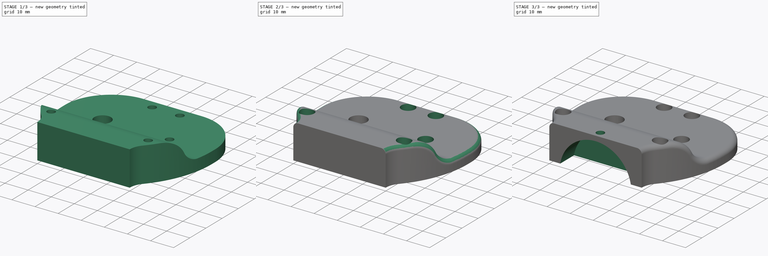
[diagram: build sequence overview — one tinted view per stage of 3, left to right]
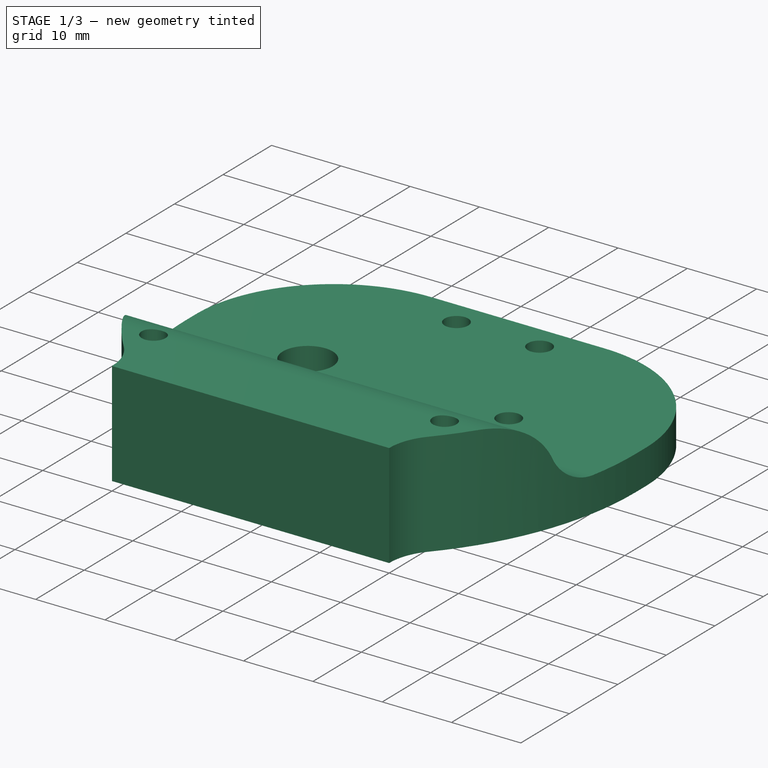
[diagram: stage 1 of 3 — iso view after this stage's code; geometry added in this stage tinted green]
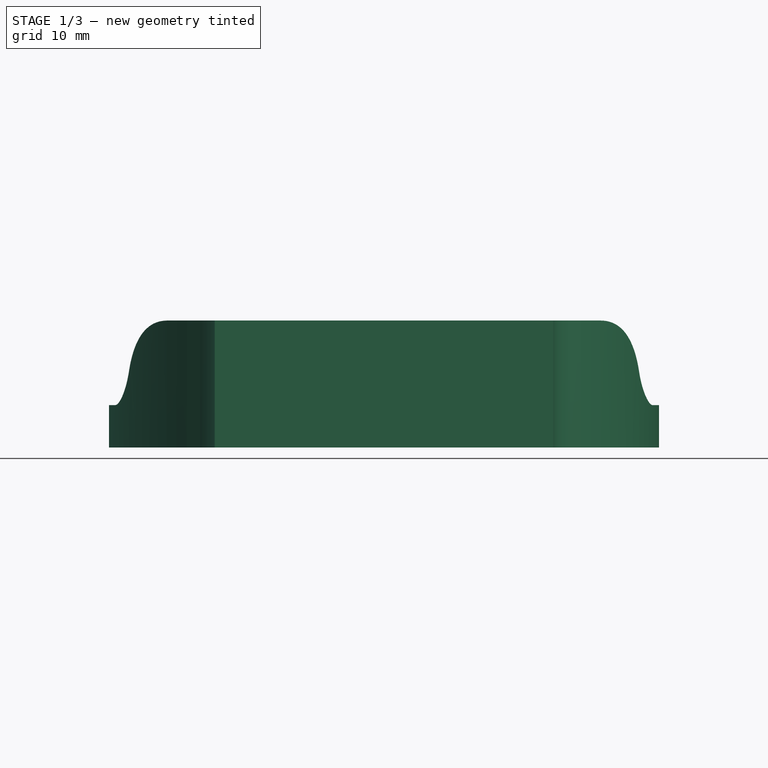
[diagram: stage 1 of 3 — front view after this stage's code; geometry added in this stage tinted green]
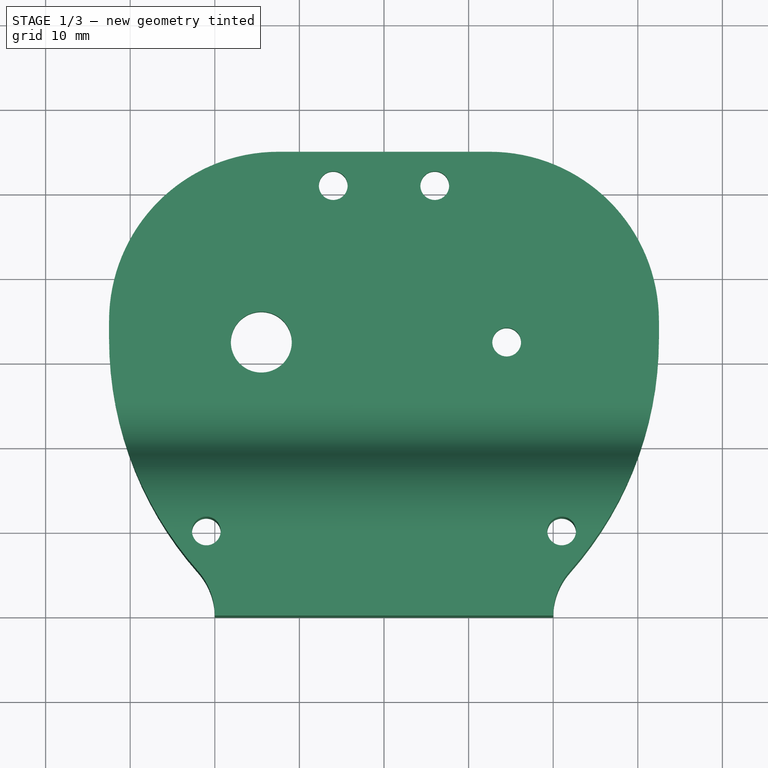
[diagram: stage 1 of 3 — top view after this stage's code; geometry added in this stage tinted green]
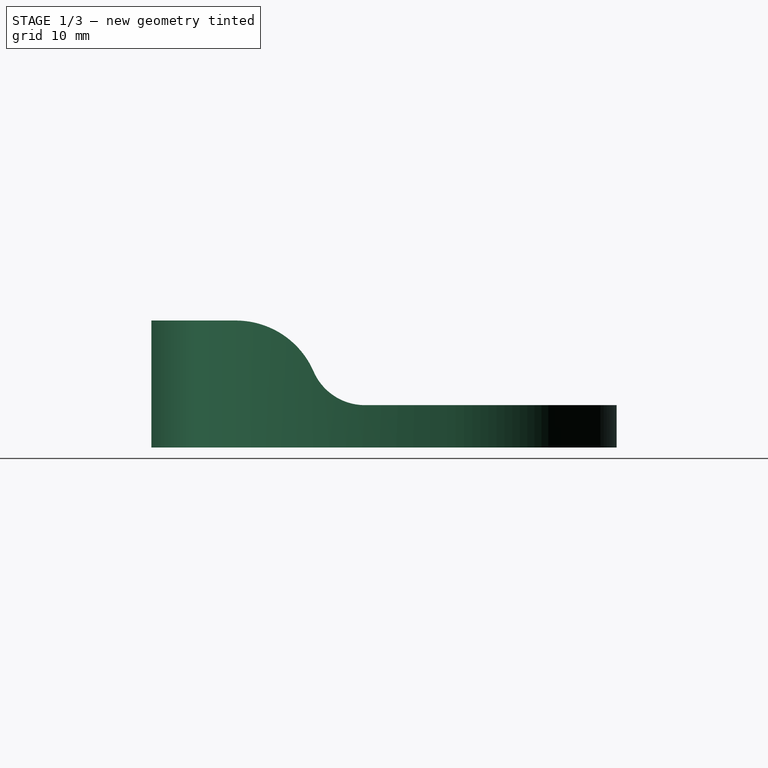
[diagram: stage 1 of 3 — right view after this stage's code; geometry added in this stage tinted green]
FCSTD DOCUMENT  (FreeCAD 0.19R24276 (Git))
Label: GripperTop
License: All rights reserved
LicenseURL: http://en.wikipedia.org/wiki/All_rights_reserved
objects: Sketcher::SketchObject×6, PartDesign::Line×6, PartDesign::Pocket×5, Spreadsheet::Sheet×1, PartDesign::Pad×1, PartDesign::Fillet×1, PartDesign::CoordinateSystem×1, PartDesign::Body×1
note: 28 computed .brp shape members not serialized (recipe doc carries the construction recipe); baked Part::Feature solids carry a one-line shape summary decoded from their .brp

FEATURE [Spreadsheet::Sheet] Spreadsheet
  cells = A2=M3BoltBodyRadius; B2(M3BoltBodyRadius)=1.7; A3=M3BoltHeadRadius; B3(M3BoltHeadRadius)=2.95; A4=M3NutCircumradius; B4(M3NutCircumradius)=3.35; A5=M3NutThickness; B5(M3NutThickness)=3; A6=Bearing655ZZBodyRadius; B6(Bearing655ZZBodyRadius)=8.199999999999999
FEATURE [Sketcher::SketchObject] Sketch
  FullyConstrained = true
  MapMode = 5
  Support = -> [XY_Plane]
  expr: Constraints[31] = Spreadsheet.M3BoltBodyRadius
  sketch-geometry (16):
    g0: LineSegment StartX=-20 StartY=0 StartZ=0 EndX=20 EndY=1e-15 EndZ=0
    g1: ArcOfCircle CenterX=27.9696 CenterY=0 CenterZ=0 NormalX=0 NormalY=0 NormalZ=1 AngleXU=0 Radius=7.9696 StartAngle=2.41742 EndAngle=3.14159
    g2: ArcOfCircle CenterX=-27.9696 CenterY=0 CenterZ=0 NormalX=0 NormalY=0 NormalZ=1 AngleXU=0 Radius=7.9696 StartAngle=0 EndAngle=0.724175
    g3: Circle CenterX=-6 CenterY=51 CenterZ=0 NormalX=0 NormalY=0 NormalZ=1 AngleXU=0 Radius=1.7
    g4: Circle CenterX=6 CenterY=51 CenterZ=0 NormalX=0 NormalY=0 NormalZ=1 AngleXU=0 Radius=1.7
    g5: LineSegment StartX=-12.5 StartY=55 StartZ=0 EndX=12.5 EndY=55 EndZ=0
    g6: ArcOfCircle CenterX=12.5 CenterY=35 CenterZ=0 NormalX=0 NormalY=0 NormalZ=1 AngleXU=0 Radius=20 StartAngle=0 EndAngle=1.5708
    g7: LineSegment StartX=32.5 StartY=35 StartZ=0 EndX=32.5 EndY=33 EndZ=0
    g8: ArcOfCircle CenterX=-9.3404 CenterY=33 CenterZ=0 NormalX=0 NormalY=0 NormalZ=1 AngleXU=0 Radius=41.8404 StartAngle=5.55901 EndAngle=6.28319
    g9: LineSegment StartX=-32.5 StartY=35 StartZ=0 EndX=-32.5 EndY=33 EndZ=0
    g10: ArcOfCircle CenterX=-12.5 CenterY=35 CenterZ=0 NormalX=0 NormalY=0 NormalZ=1 AngleXU=0 Radius=20 StartAngle=1.5708 EndAngle=3.14159
    g11: ArcOfCircle CenterX=9.3404 CenterY=33 CenterZ=0 NormalX=0 NormalY=0 NormalZ=1 AngleXU=0 Radius=41.8404 StartAngle=3.14159 EndAngle=3.86577
    g12: Circle CenterX=-21 CenterY=10 CenterZ=0 NormalX=0 NormalY=0 NormalZ=1 AngleXU=0 Radius=1.7
    g13: Circle CenterX=21 CenterY=10 CenterZ=0 NormalX=0 NormalY=0 NormalZ=1 AngleXU=0 Radius=1.7
    g14: Circle CenterX=-14.5 CenterY=32.5 CenterZ=0 NormalX=0 NormalY=0 NormalZ=1 AngleXU=0 Radius=3.6
    g15: Circle CenterX=14.5 CenterY=32.5 CenterZ=0 NormalX=0 NormalY=0 NormalZ=1 AngleXU=0 Radius=1.7
  constraints (42):
    c: PointOnObject(g0,g-1)
    c: Symmetric(g0,g0,g-2)
    c: PointOnObject(g1,g-1)
    c: Coincident(g1,g0)
    c: PointOnObject(g2,g-1)
    c: Coincident(g2,g0)
    c: Equal(g3,g4)
    c: Symmetric(g3,g4,g-2)
    c: DistanceX(g3,g4) = 12
    c: Horizontal(g5)
    c: DistanceY(g4,g5) = 4
    c: Radius(g6) = 20
    c: Tangent(g6,g5) = 1.5708
    c: DistanceX(g0,g0) = 40
    c: Vertical(g7)
    c: Tangent(g7,g6) = 1.5708
    c: Tangent(g8,g1) = 1.5708
    c: Tangent(g8,g7) = 1.5708
    c: DistanceY(g7,g7) = 2
    c: Vertical(g9)
    c: Equal(g9,g7)
    c: Equal(g10,g6)
    c: Coincident(g10,g5)
    c: Symmetric(g10,g6,g-2)
    c: Tangent(g10,g9) = -1.5708
    c: Tangent(g11,g2) = 1.5708
    c: Tangent(g11,g9) = -1.5708
    c: Equal(g2,g1)
    c: DistanceX(g2,g-1) = 22
    c: DistanceX(g9,g6) = 65
    c: DistanceY(g-1,g5) = 55
    c: Radius(g3) = 1.7
    c: Equal(g13,g12)
    c: Equal(g12,g3)
    c: Symmetric(g12,g13,g-2)
    c: DistanceY(g-1,g12) = 10
    c: DistanceX(g12,g-1) = 21
    c: Equal(g15,g13)
    c: Radius(g14) = 3.6
    c: Symmetric(g15,g14,g-2)
    c: DistanceX(g14,g-1) = 14.5
    c: DistanceY(g0,g14) = 32.5
FEATURE [PartDesign::Pad] Pad
  Direction = (1,1,1)
  Length = 15
  Length2 = 100
  Profile = -> Sketch
  Refine = true
  Type = 0
FEATURE [Sketcher::SketchObject] Sketch001
  FullyConstrained = true
  MapMode = 5
  Placement = pos=(32.5,0,0) rot=(0.57735,0.57735,0.57735;2.0944rad)
  Support = -> [Pad]
  sketch-geometry (7):
    g0: ArcOfCircle CenterX=10 CenterY=5 CenterZ=0 NormalX=0 NormalY=0 NormalZ=1 AngleXU=0 Radius=10 StartAngle=0.41 EndAngle=1.5708
    g1: ArcOfCircle CenterX=25.25 CenterY=11.6281 CenterZ=0 NormalX=0 NormalY=0 NormalZ=1 AngleXU=0 Radius=6.62812 StartAngle=3.55159 EndAngle=4.71239
    g2: LineSegment StartX=10 StartY=15 StartZ=0 EndX=0 EndY=15 EndZ=0
    g3: LineSegment StartX=0 StartY=15 StartZ=0 EndX=0 EndY=20 EndZ=0
    g4: LineSegment StartX=0 StartY=20 StartZ=0 EndX=60 EndY=20 EndZ=0
    g5: LineSegment StartX=60 StartY=20 StartZ=0 EndX=60 EndY=5 EndZ=0
    g6: LineSegment StartX=60 StartY=5 StartZ=0 EndX=25.25 EndY=5 EndZ=0
  constraints (20):
    c: Tangent(g0,g2) = -1.5708
    c: Coincident(g2,g3)
    c: PointOnObject(g3,g-2)
    c: Vertical(g3)
    c: Coincident(g3,g4)
    c: Horizontal(g4)
    c: Coincident(g4,g5)
    c: Vertical(g5)
    c: Coincident(g5,g6)
    c: Horizontal(g6)
    c: Horizontal(g2)
    c: Tangent(g1,g0) = 1.5708
    c: Tangent(g6,g1) = 1.5708
    c: DistanceX(g-1,g0) = 10
    c: Radius(g0) = 10
    c: DistanceX(g6,g6) = 34.75
    c: DistanceX(g4,g4) = 60
    c: DistanceY(g-1,g2) = 15
    c: DistanceY(g3,g3) = 5
    c: DistanceY(g-1,g1) = 5
FEATURE [PartDesign::Pocket] Pocket
  BaseFeature = -> Pad
  Length = 5
  Length2 = 100
  Profile = -> Sketch001
  Refine = true
  Type = 1
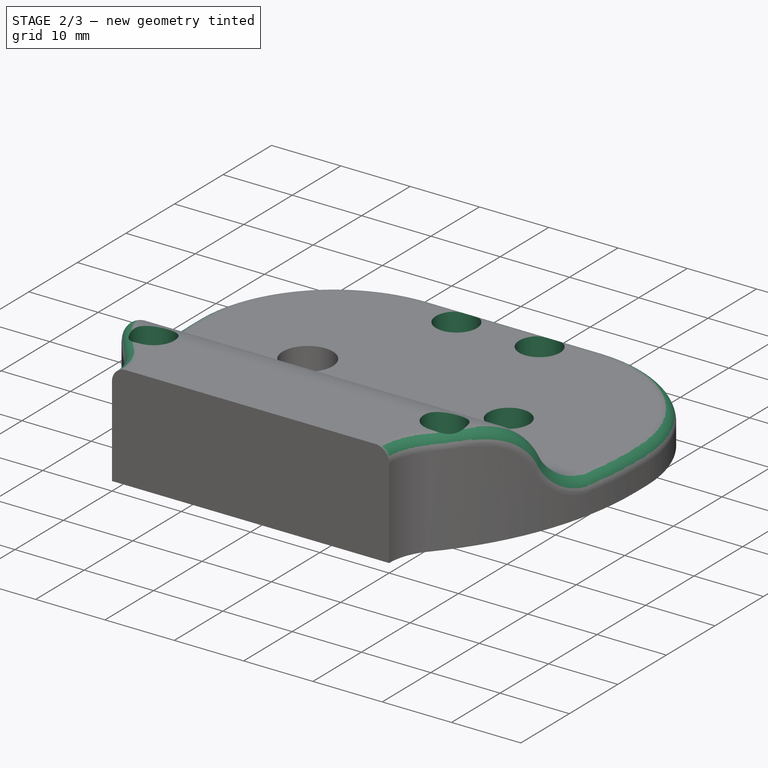
[diagram: stage 2 of 3 — iso view after this stage's code; geometry added in this stage tinted green]
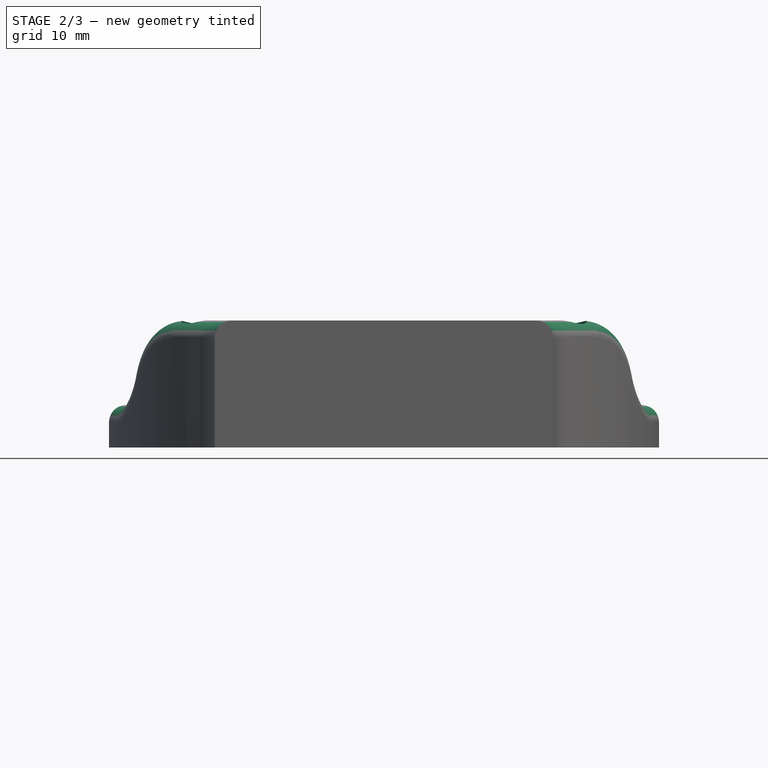
[diagram: stage 2 of 3 — front view after this stage's code; geometry added in this stage tinted green]
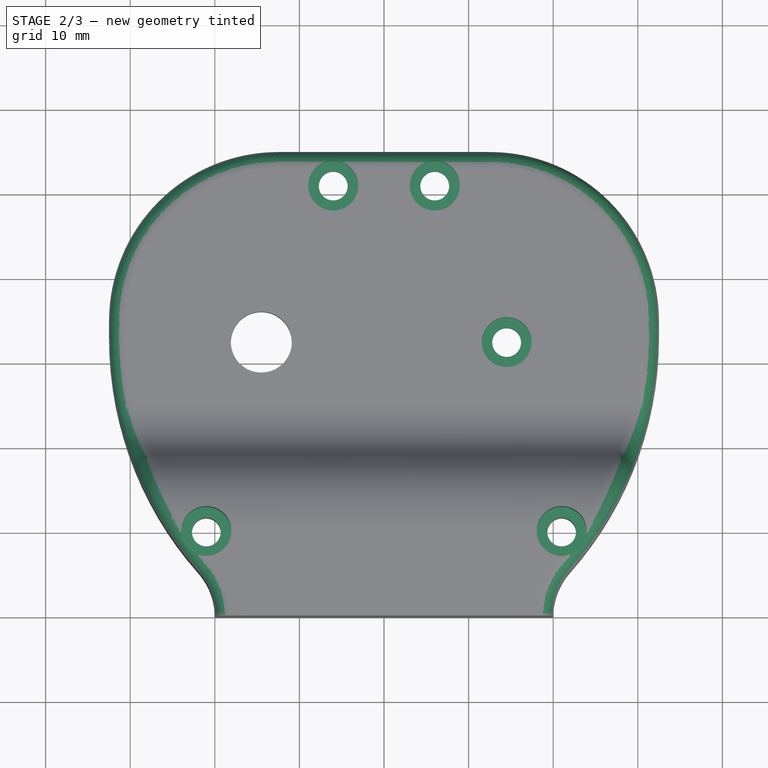
[diagram: stage 2 of 3 — top view after this stage's code; geometry added in this stage tinted green]
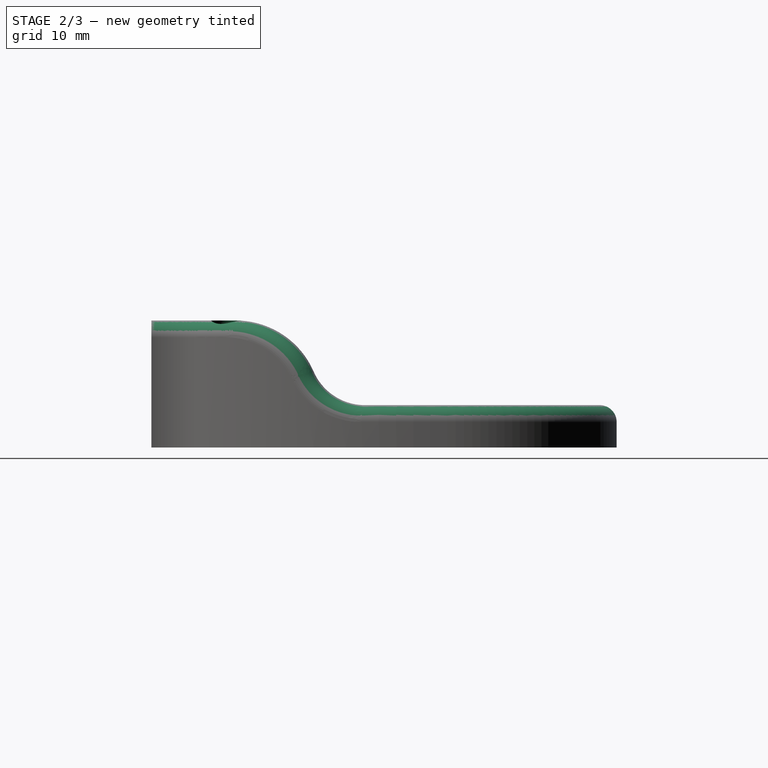
[diagram: stage 2 of 3 — right view after this stage's code; geometry added in this stage tinted green]
FEATURE [PartDesign::Fillet] Fillet
  Base = -> Pocket [Edge45]
  BaseFeature = -> Pocket
  Radius = 2
  Refine = true
  SupportTransform = false
FEATURE [Sketcher::SketchObject] Sketch002
  ExternalGeometry = -> [Fillet]
  FullyConstrained = true
  MapMode = 5
  Placement = pos=(0,0,5) rot=(0,0,1;0rad)
  Support = -> [Fillet]
  expr: Constraints[5] = Spreadsheet.M3BoltHeadRadius
  sketch-geometry (3):
    g0: Circle CenterX=-6 CenterY=51 CenterZ=0 NormalX=0 NormalY=0 NormalZ=1 AngleXU=0 Radius=2.95
    g1: Circle CenterX=6 CenterY=51 CenterZ=0 NormalX=0 NormalY=0 NormalZ=1 AngleXU=0 Radius=2.95
    g2: Circle CenterX=14.5 CenterY=32.5 CenterZ=0 NormalX=0 NormalY=0 NormalZ=1 AngleXU=0 Radius=2.95
  constraints (6):
    c: Coincident(g0,g-5)
    c: Coincident(g1,g-4)
    c: Coincident(g2,g-3)
    c: Equal(g2,g1)
    c: Equal(g1,g0)
    c: Radius(g0) = 2.95
FEATURE [PartDesign::Pocket] Pocket001
  BaseFeature = -> Fillet
  Length = 3
  Length2 = 100
  Profile = -> Sketch002
  Refine = true
  Type = 0
FEATURE [Sketcher::SketchObject] Sketch003
  ExternalGeometry = -> [Pocket001]
  FullyConstrained = true
  MapMode = 5
  Placement = pos=(0,0,15) rot=(0,0,1;0rad)
  Support = -> [Pocket001]
  expr: Constraints[3] = Spreadsheet.M3BoltHeadRadius
  sketch-geometry (2):
    g0: Circle CenterX=-21 CenterY=10 CenterZ=0 NormalX=0 NormalY=0 NormalZ=1 AngleXU=0 Radius=2.95
    g1: Circle CenterX=21 CenterY=10 CenterZ=0 NormalX=0 NormalY=0 NormalZ=1 AngleXU=0 Radius=2.95
  constraints (4):
    c: Coincident(g0,g-3)
    c: Coincident(g1,g-4)
    c: Equal(g1,g0)
    c: Radius(g0) = 2.95
FEATURE [PartDesign::Pocket] Pocket002
  BaseFeature = -> Pocket001
  Length = 7
  Length2 = 100
  Profile = -> Sketch003
  Refine = true
  Type = 0
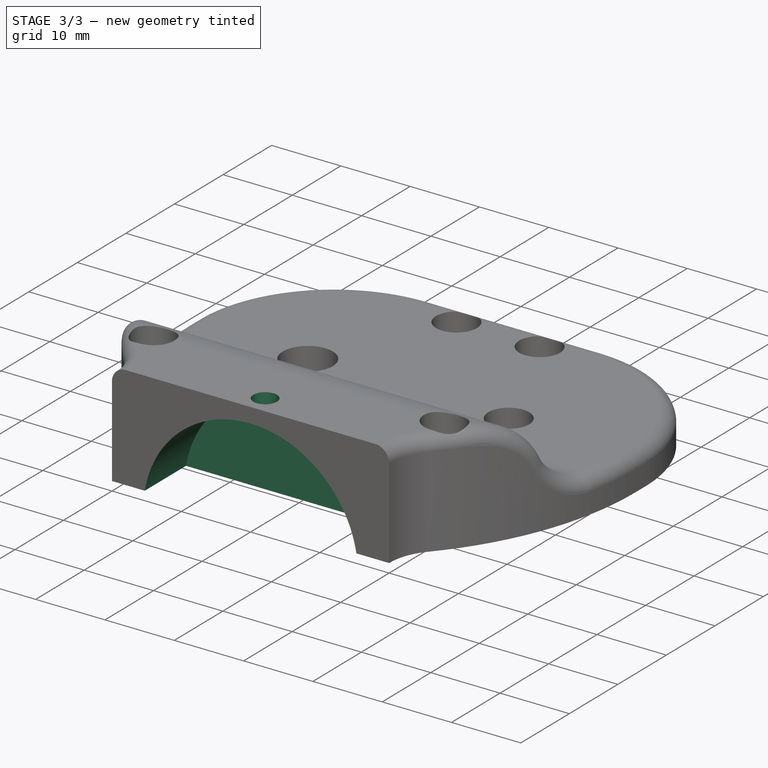
[diagram: stage 3 of 3 — iso view after this stage's code; geometry added in this stage tinted green]
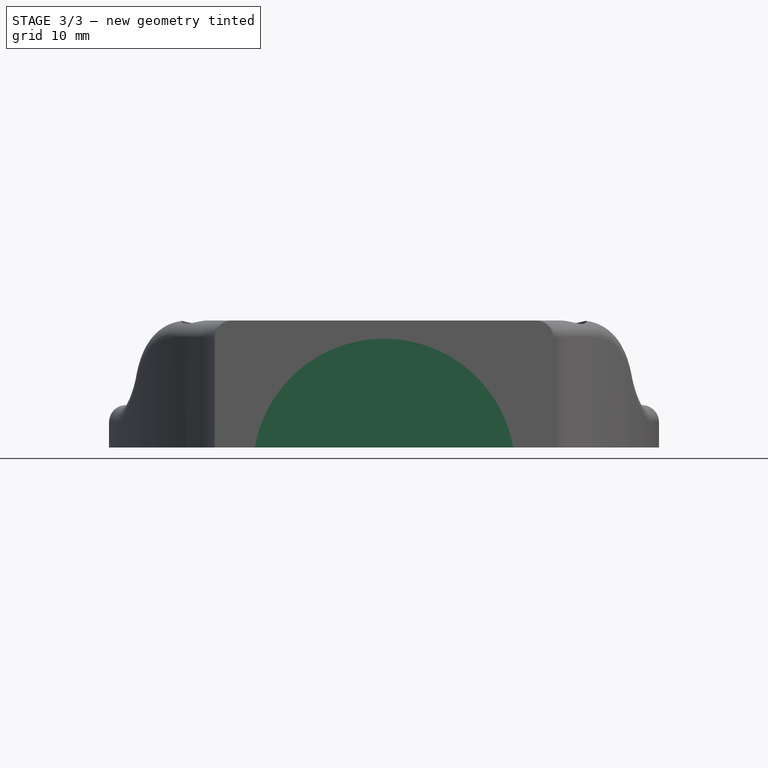
[diagram: stage 3 of 3 — front view after this stage's code; geometry added in this stage tinted green]
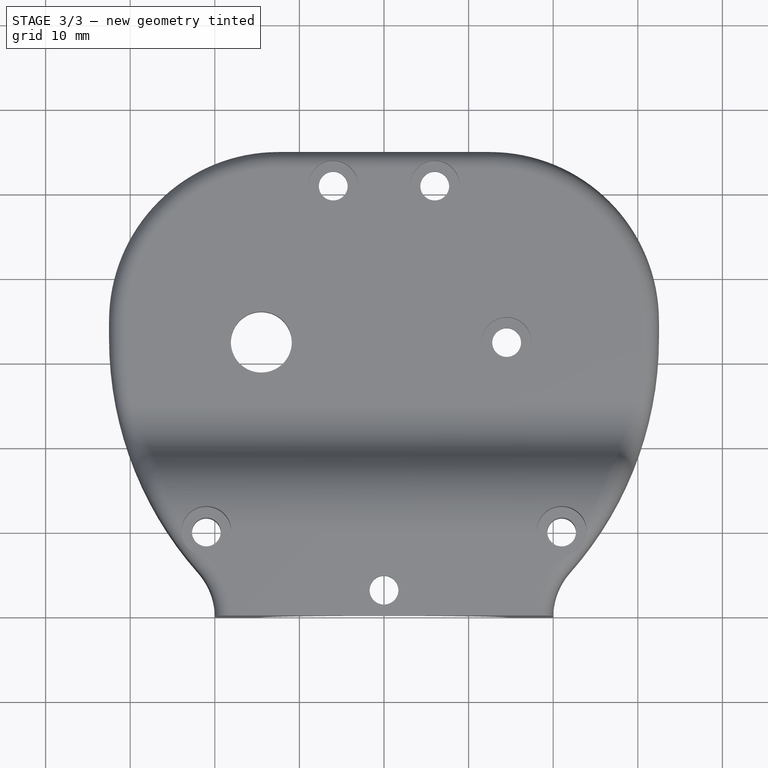
[diagram: stage 3 of 3 — top view after this stage's code; geometry added in this stage tinted green]
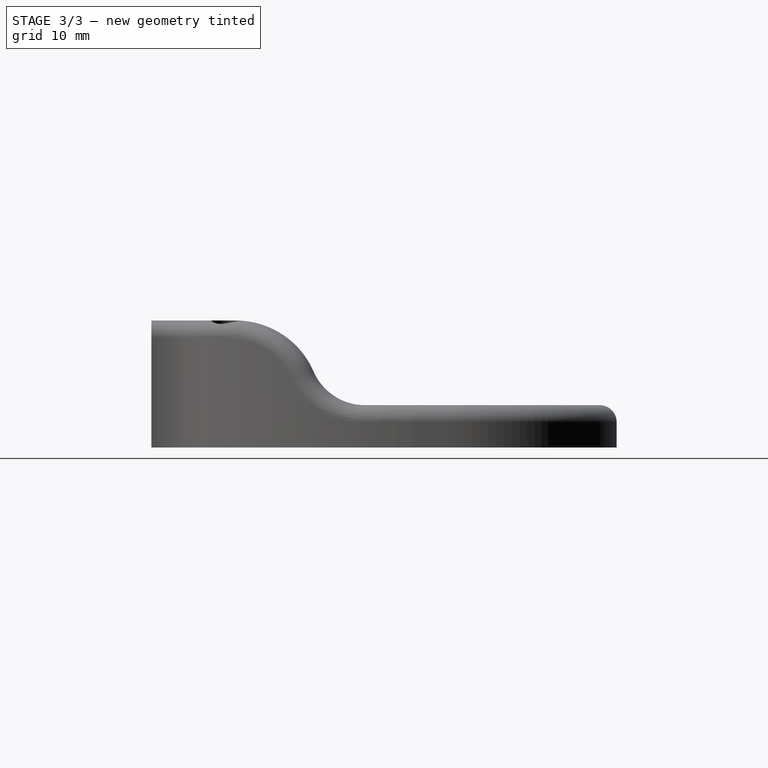
[diagram: stage 3 of 3 — right view after this stage's code; geometry added in this stage tinted green]
FEATURE [Sketcher::SketchObject] Sketch004
  FullyConstrained = true
  MapMode = 5
  Placement = pos=(0,4e-16,0) rot=(1,0,0;1.5708rad)
  Support = -> [Pocket002]
  sketch-geometry (1):
    g0: Circle CenterX=0 CenterY=-2.65 CenterZ=0 NormalX=0 NormalY=0 NormalZ=1 AngleXU=0 Radius=15.5
  constraints (3):
    c: PointOnObject(g0,g-2)
    c: DistanceY(g0,g-1) = 2.65
    c: Radius(g0) = 15.5
FEATURE [PartDesign::Pocket] Pocket003
  BaseFeature = -> Pocket002
  Length = 8.5
  Length2 = 100
  Profile = -> Sketch004
  Refine = true
  Type = 0
FEATURE [Sketcher::SketchObject] Sketch005
  FullyConstrained = true
  MapMode = 5
  Placement = pos=(0,0,15) rot=(0,0,1;0rad)
  Support = -> [Pocket003]
  expr: Constraints[2] = Spreadsheet.M3BoltBodyRadius
  sketch-geometry (1):
    g0: Circle CenterX=0 CenterY=3 CenterZ=0 NormalX=0 NormalY=0 NormalZ=1 AngleXU=0 Radius=1.7
  constraints (3):
    c: PointOnObject(g0,g-2)
    c: DistanceY(g-1,g0) = 3
    c: Radius(g0) = 1.7
FEATURE [PartDesign::Pocket] Pocket004
  BaseFeature = -> Pocket003
  Length = 5
  Length2 = 100
  Profile = -> Sketch005
  Refine = true
  Type = 1
FEATURE [PartDesign::CoordinateSystem] LCS_GripperTop
  AttacherType = Attacher::AttachEngine3D
  MapMode = 45
  Placement = pos=(6.7e-15,10,0) rot=(0,0,1;1.5708rad)
  Support = -> [Pocket004]
FEATURE [PartDesign::Line] HoleAxis_1
  AttacherType = Attacher::AttachEngineLine
  Length = 4.79083
  MapMode = 19
  Placement = pos=(0,3,15) rot=(0,0,1;0rad)
  ResizeMode = 1
  Support = -> [Pocket004]
FEATURE [PartDesign::Line] HoleAxis_2
  AttacherType = Attacher::AttachEngineLine
  Length = 4.79083
  MapMode = 19
  Placement = pos=(21,10,8) rot=(-1,0,0;3.14159rad)
  ResizeMode = 1
  Support = -> [Pocket004]
FEATURE [PartDesign::Line] HoleAxis_3
  AttacherType = Attacher::AttachEngineLine
  Length = 4.79083
  MapMode = 19
  Placement = pos=(-21,10,8) rot=(-1,0,0;3.14159rad)
  ResizeMode = 1
  Support = -> [Pocket004]
FEATURE [PartDesign::Line] HoleAxis_4
  AttacherType = Attacher::AttachEngineLine
  Length = 4.79083
  MapMode = 19
  Placement = pos=(14.5,32.5,2) rot=(-1,0,0;3.14159rad)
  ResizeMode = 1
  Support = -> [Pocket004]
FEATURE [PartDesign::Line] HoleAxis_5
  AttacherType = Attacher::AttachEngineLine
  Length = 4.79083
  MapMode = 19
  Placement = pos=(6,51,2) rot=(-1,0,0;3.14159rad)
  ResizeMode = 1
  Support = -> [Pocket004]
FEATURE [PartDesign::Line] HoleAxis_6
  AttacherType = Attacher::AttachEngineLine
  Length = 4.79083
  MapMode = 19
  Placement = pos=(-6,51,2) rot=(-1,0,0;3.14159rad)
  ResizeMode = 1
  Support = -> [Pocket004]
FEATURE [PartDesign::Body] Body  label="GripperTop"
  Group = -> [Sketch,Pad,Sketch001,Pocket,Fillet,Sketch002,Pocket001,Sketch003,Pocket002,Sketch004,Pocket003,Sketch005,Pocket004,LCS_GripperTop,HoleAxis_1,HoleAxis_2,HoleAxis_3,HoleAxis_4,HoleAxis_5,HoleAxis_6]
  Origin = -> Origin
  Tip = -> Pocket004
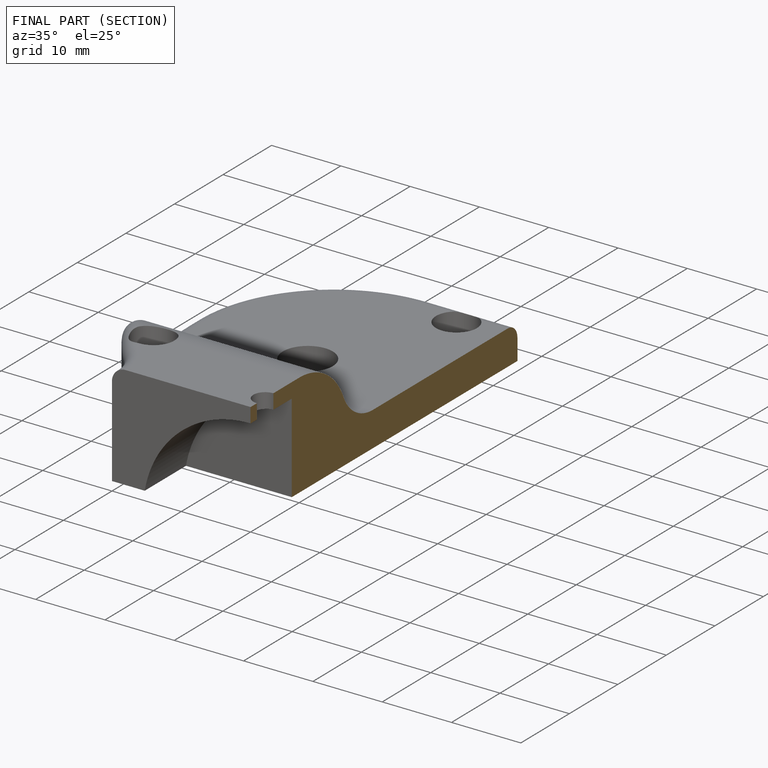
[diagram: finished part — half-section view (interior)]
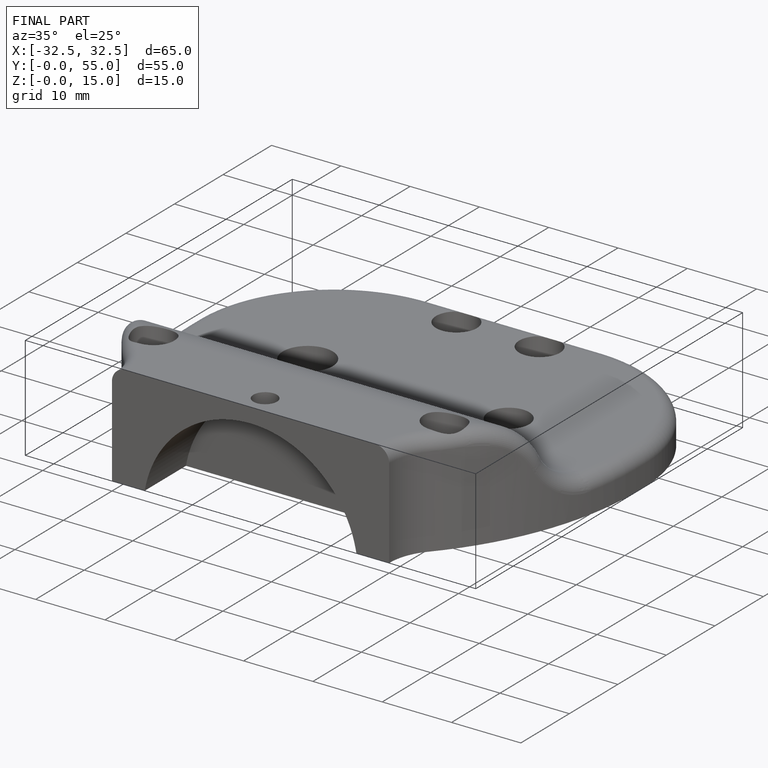
[diagram: finished part — iso view with bounding-box wireframe]
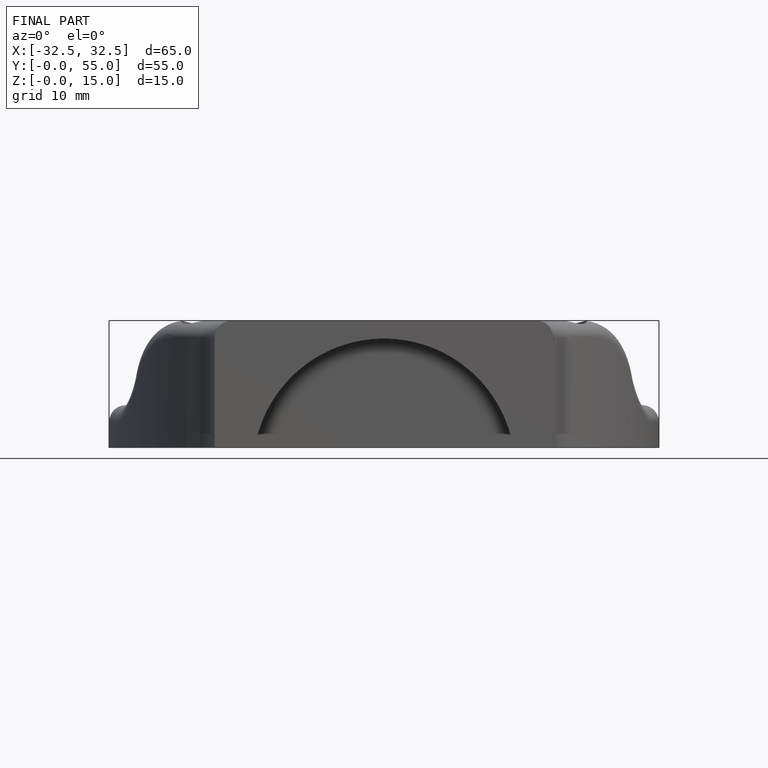
[diagram: finished part — front view with bounding-box wireframe]
